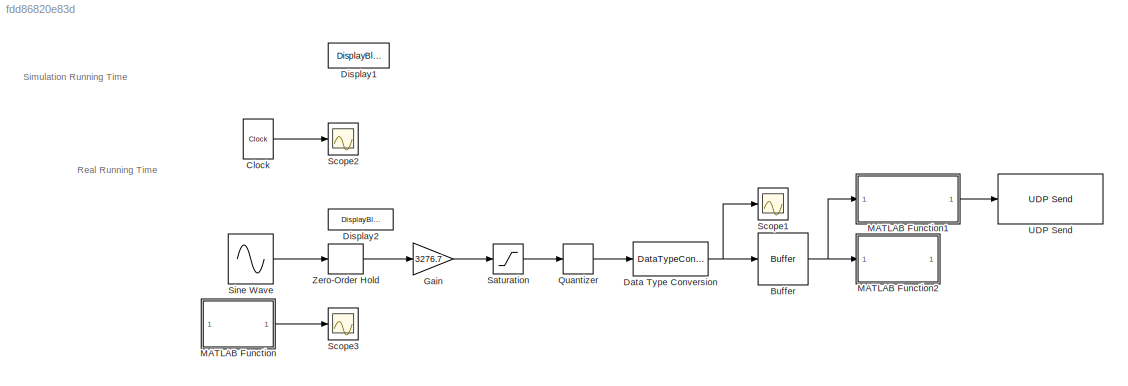
MODEL slx_fdd86820e83d
KIND model
CONFIG AbsTol = auto
CONFIG EnableMultiTasking = off
CONFIG FixedStep = auto
CONFIG InitFcn = Fs=5e3\nInter_sampling=0.5
CONFIG MaxStep = auto
CONFIG MinStep = auto
CONFIG RelTol = 1e-3
CONFIG SampleTimeConstraint = Unconstrained
CONFIG SolverName = VariableStepAuto
CONFIG StartTime = 0.0
CONFIG StopTime = 2
BLOCK [Buffer] Buffer
  N = Fs*Inter_sampling
  OutputFrames = off
BLOCK [Clock] Clock
BLOCK [DataTypeConversion] Data Type Conversion
  LockScale = on
  OutDataTypeStr = int16
  OutMax = [32767]
  OutMin = [-32768]
  RndMeth = Nearest
BLOCK [DisplayBlock] Display1
  LabelPosition = Hide
  Transparency = 1
BLOCK [DisplayBlock] Display2
  LabelPosition = Hide
  Transparency = 1
BLOCK [Gain] Gain
  Gain = 3276.7
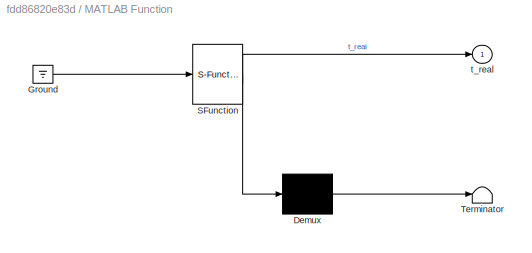
BLOCK [SubSystem] MATLAB Function
  ErrorFcn = Stateflow.Translate.translate
  PermitHierarchicalResolution = ExplicitOnly
  SFBlockType = MATLAB Function
  TreatAsAtomicUnit = on
BLOCK [Demux] MATLAB Function/ Demux 
  Outputs = 1
BLOCK [Ground] MATLAB Function/ Ground 
BLOCK [S-Function] MATLAB Function/ SFunction 
  EnableBusSupport = on
  FunctionName = sf_sfun
  PortCounts = [1 2]
  SFcnIsStateOwnerBlock = off
  SFunctionDeploymentMode = off
  Tag = Stateflow S-Function 2
BLOCK [Terminator] MATLAB Function/ Terminator 
BLOCK [Outport] MATLAB Function/t_real
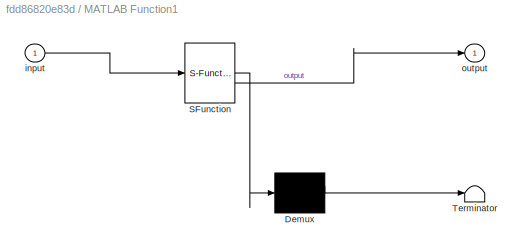
BLOCK [SubSystem] MATLAB Function1
  ErrorFcn = Stateflow.Translate.translate
  PermitHierarchicalResolution = ExplicitOnly
  SFBlockType = MATLAB Function
  TreatAsAtomicUnit = on
BLOCK [Demux] MATLAB Function1/ Demux 
  Outputs = 1
BLOCK [S-Function] MATLAB Function1/ SFunction 
  EnableBusSupport = on
  FunctionName = sf_sfun
  PortCounts = [1 2]
  SFcnIsStateOwnerBlock = off
  SFunctionDeploymentMode = off
  Tag = Stateflow S-Function 1
BLOCK [Terminator] MATLAB Function1/ Terminator 
BLOCK [Inport] MATLAB Function1/input
BLOCK [Outport] MATLAB Function1/output
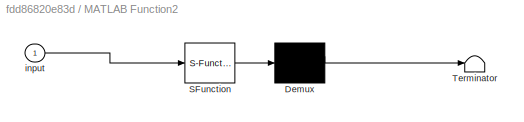
BLOCK [SubSystem] MATLAB Function2
  ErrorFcn = Stateflow.Translate.translate
  PermitHierarchicalResolution = ExplicitOnly
  SFBlockType = MATLAB Function
  TreatAsAtomicUnit = on
BLOCK [Demux] MATLAB Function2/ Demux 
  Outputs = 1
BLOCK [S-Function] MATLAB Function2/ SFunction 
  EnableBusSupport = on
  FunctionName = sf_sfun
  PortCounts = [1 1]
  SFcnIsStateOwnerBlock = off
  SFunctionDeploymentMode = off
  Tag = Stateflow S-Function 3
BLOCK [Terminator] MATLAB Function2/ Terminator 
BLOCK [Inport] MATLAB Function2/input
BLOCK [Quantizer] Quantizer
  QuantizationInterval = 20/65536
BLOCK [Saturate] Saturation
  LowerLimit = -32768
  UpperLimit = 32767
BLOCK [Scope] Scope1
  Floating = off
  NumInputPorts = 1
  ScopeSpecificationString = Simulink.scopes.TimeScopeBlockCfg('CurrentConfiguration', extmgr.ConfigurationSet(extmgr.Configuration('Core','General UI',true),extmgr.Configuration('Core','Source UI',true),extmgr.Configuration('Sources','WiredSimulink',true,'DataLoggingVariableName','ScopeData1'),extmgr.Configuration('Visuals','Time Domain',true,'SerializedDisplays',{struct('MinYLimReal','-13233.19818','MaxYLimReal','35975.1940...<+2143ch>
BLOCK [Scope] Scope2
  Floating = off
  NumInputPorts = 1
  ScopeSpecificationString = Simulink.scopes.TimeScopeBlockCfg('CurrentConfiguration', extmgr.ConfigurationSet(extmgr.Configuration('Core','General UI',true),extmgr.Configuration('Core','Source UI',true),extmgr.Configuration('Sources','WiredSimulink',true,'DataLoggingVariableName','ScopeData2'),extmgr.Configuration('Visuals','Time Domain',true),extmgr.Configuration('Tools','Plot Navigation',true),extmgr.Configuration('Tools',...<+40ch>
BLOCK [Scope] Scope3
  Floating = off
  NumInputPorts = 1
  ScopeSpecificationString = Simulink.scopes.TimeScopeBlockCfg('CurrentConfiguration', extmgr.ConfigurationSet(extmgr.Configuration('Core','General UI',true),extmgr.Configuration('Core','Source UI',true),extmgr.Configuration('Sources','WiredSimulink',true,'DataLoggingVariableName','ScopeData3'),extmgr.Configuration('Visuals','Time Domain',true),extmgr.Configuration('Tools','Plot Navigation',true),extmgr.Configuration('Tools',...<+40ch>
BLOCK [Sin] Sine Wave
  Amplitude = 10
  Frequency = 2*pi*50
  SampleTime = 0
BLOCK [Reference] UDP Send  REF=dspnetwork/UDP Send
  LibrarySourceBlock = dspsnks4/UDP Send
  SourceBlock = dspnetwork/UDP Send
  SourceType = UDP Send
BLOCK [ZeroOrderHold] Zero-Order Hold
  SampleTime = 1/(Fs)
ANNOTATION (root): Real Running Time
ANNOTATION (root): Simulation Running Time
NET Buffer:1 -> MATLAB Function1:1, MATLAB Function2:1
LINE Clock:1 -> Scope2:1
NET Data Type Conversion:1 -> Buffer:1, Scope1:1
LINE Gain:1 -> Saturation:1
LINE MATLAB Function1:1 -> UDP Send:1
LINE MATLAB Function:1 -> Scope3:1
LINE Quantizer:1 -> Data Type Conversion:1
LINE Saturation:1 -> Quantizer:1
LINE Sine Wave:1 -> Zero-Order Hold:1
LINE Zero-Order Hold:1 -> Gain:1
note: NET lines group one-source signal fan-out (src -> all destinations, sorted); 1:1 wires keep LINE
CHART MATLAB Function states=1 transitions=1
  STATE_LABEL 'eML_blk_kernel()'
  STATE_LABEL 'SCRIPT:\nfunction t_real = get_wall_time()\n%#codegen\npersistent t0\nif isempty(t0)\n    t0 = tic; % 记录仿真启动的实际时间\nend\nt_real = toc(t0); % 输出实际运行时间（秒）\nend\n'
CHART MATLAB Function2 states=1 transitions=1
  STATE_LABEL 'eML_blk_kernel()'
  STATE_LABEL "SCRIPT:\nfunction saveBufferData(input)\n    persistent count;\n    if isempty(count)\n        count = int32(1);  % 初始化计数器并将其类型设置为 int32\n    end\n\n    % 使用 sprintf 动态生成变量名\n    varName = sprintf('bufferData%d', count);  % 生成如 bufferData1, bufferData2 等变量名\n\n    % 将数据保存到 Workspace\n    assignin('base', varName, input);  % 将数据存储到基础 Workspace\n\n    % 每次接收数据时增加计数\n    count = count + 1;\nend\n"
CHART MATLAB Function1 states=1 transitions=1
  STATE_LABEL 'eML_blk_kernel()'
  STATE_LABEL "SCRIPT:\nfunction output = countBufferOutput(input)\n    persistent count;\n    if isempty(count)\n        count = 0;\n    end\n    count = count + 1;  % 每次收到输入时增加计数\n    output = input;  % 保持输入数据不变\n    \n    % 强制转换 count 为 int32 类型，并显示输出次数\n    disp('Output count:');  % 输出次数\n    disp(count);  % 输出次数\n    % 显示当前输入数据帧的长度\n    frame_length = length(input);  % 获取当前帧的长度\n    disp(sprintf('Frame length: %d', frame...<+27ch>"
CHART  states=0 transitions=0
CHART  states=0 transitions=0
CHART  states=0 transitions=0
